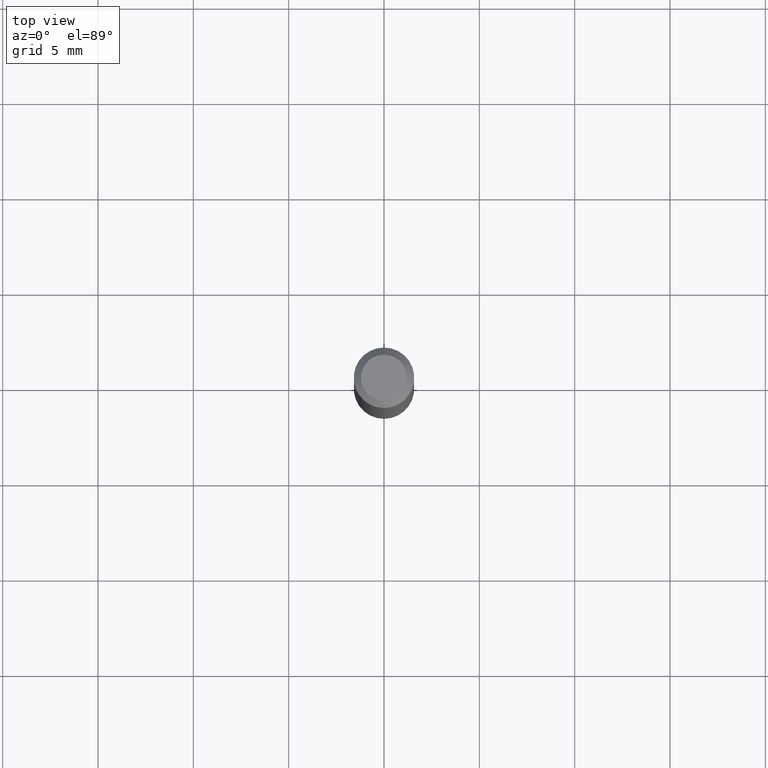
[diagram: clean part render]
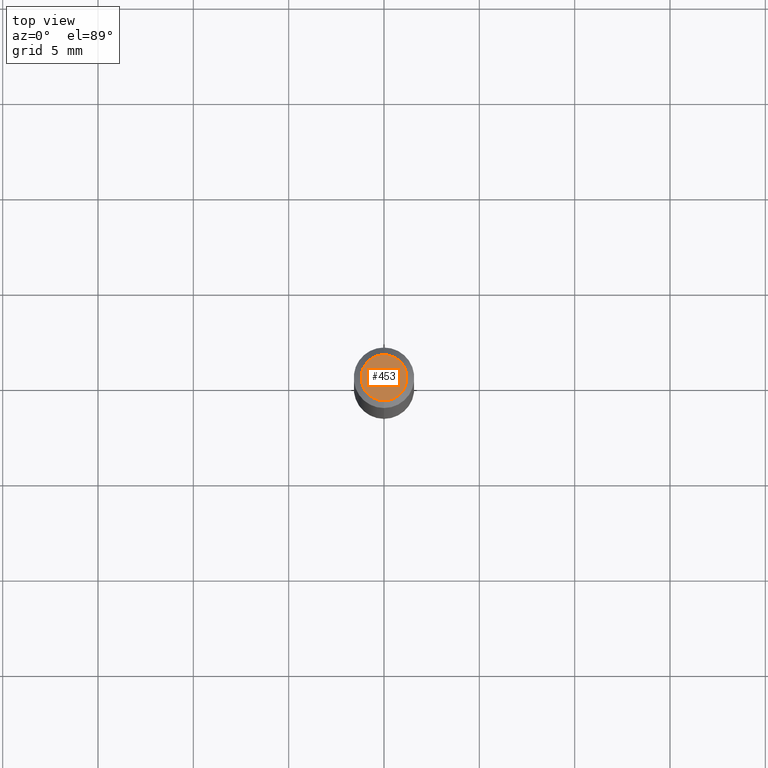
[diagram: same view with one face highlighted and labeled with its STEP entity id]
A machine part, top view. The second image highlights one B-rep face of the part: STEP entity #453.
In plain terms, the highlighted planar face has unit normal (0, -0, -1).
Its self-contained STEP definition (entity closure, byte-faithful):
#32 = DIRECTION ( 'NONE',  ( -2.445502103091854659E-29, 3.491433655777583102E-15, 1.000000000000000000 ) ) ;
#35 = CARTESIAN_POINT ( 'NONE',  ( -3.773273898774340269E-16, -0.04749999999999999362, 1.569805141119898495E-16 ) ) ;
#36 = CARTESIAN_POINT ( 'NONE',  ( 3.840629472727447874E-16, 0.04749999999999999362, -1.747056831868805136E-16 ) ) ;
#37 = AXIS2_PLACEMENT_3D ( 'NONE', #203, #282, #356 ) ;
#55 = CIRCLE ( 'NONE', #301, 0.04749999999999999362 ) ;
#97 = DIRECTION ( 'NONE',  ( 2.445502103091854099E-29, -3.491433655777583497E-15, -1.000000000000000000 ) ) ;
#101 = ORIENTED_EDGE ( 'NONE', *, *, #297, .T. ) ;
#180 = VERTEX_POINT ( 'NONE', #36 ) ;
#203 = CARTESIAN_POINT ( 'NONE',  ( 2.167346912515190194E-46, -3.094312593121061919E-32, -8.862584537445327424E-18 ) ) ;
#216 = DIRECTION ( 'NONE',  ( 6.982962677686265922E-15, 1.000000000000000000, -3.491433655777583497E-15 ) ) ;
#228 = CARTESIAN_POINT ( 'NONE',  ( 2.167346912515190194E-46, -3.094312593121061919E-32, -8.862584537445327424E-18 ) ) ;
#247 = VERTEX_POINT ( 'NONE', #35 ) ;
#282 = DIRECTION ( 'NONE',  ( -2.445502103091854659E-29, 3.491433655777583102E-15, 1.000000000000000000 ) ) ;
#285 = PLANE ( 'NONE',  #317 ) ;
#297 = EDGE_CURVE ( 'NONE', #180, #247, #55, .T. ) ;
#301 = AXIS2_PLACEMENT_3D ( 'NONE', #228, #32, #485 ) ;
#317 = AXIS2_PLACEMENT_3D ( 'NONE', #489, #97, #216 ) ;
#321 = EDGE_CURVE ( 'NONE', #247, #180, #463, .T. ) ;
#356 = DIRECTION ( 'NONE',  ( -6.982962677686266711E-15, -1.000000000000000000, 3.491433655777583102E-15 ) ) ;
#360 = ORIENTED_EDGE ( 'NONE', *, *, #321, .T. ) ;
#453 = ADVANCED_FACE ( 'NONE', ( #461 ), #285, .F. ) ;
#459 = EDGE_LOOP ( 'NONE', ( #101, #360 ) ) ;
#461 = FACE_OUTER_BOUND ( 'NONE', #459, .T. ) ;
#463 = CIRCLE ( 'NONE', #37, 0.04749999999999999362 ) ;
#485 = DIRECTION ( 'NONE',  ( -6.982962677686266711E-15, -1.000000000000000000, 3.491433655777583102E-15 ) ) ;
#489 = CARTESIAN_POINT ( 'NONE',  ( 3.316907271900976096E-16, 0.04749999999999999362, -1.702743909181578230E-16 ) ) ;